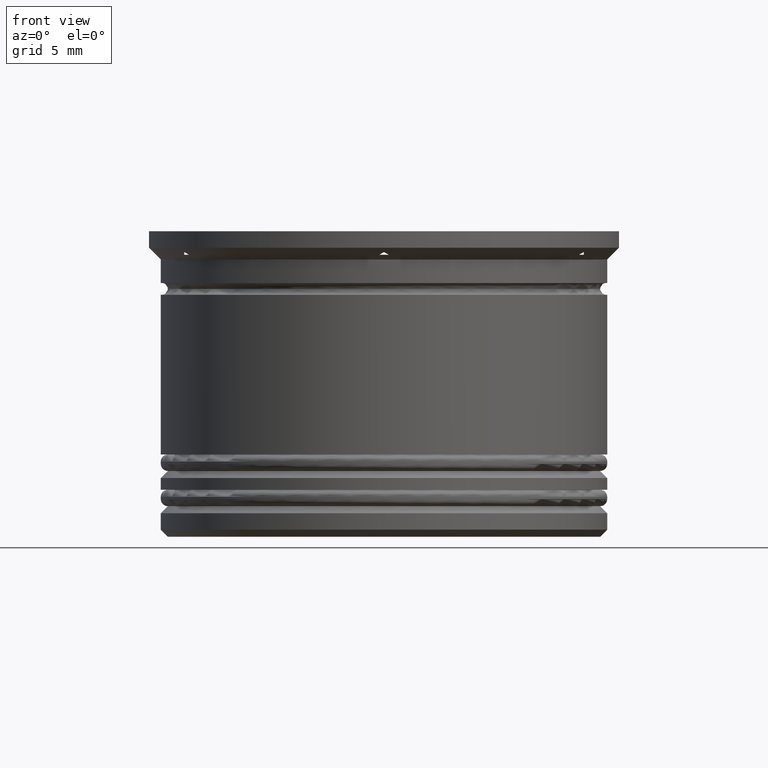
[diagram: clean part render]
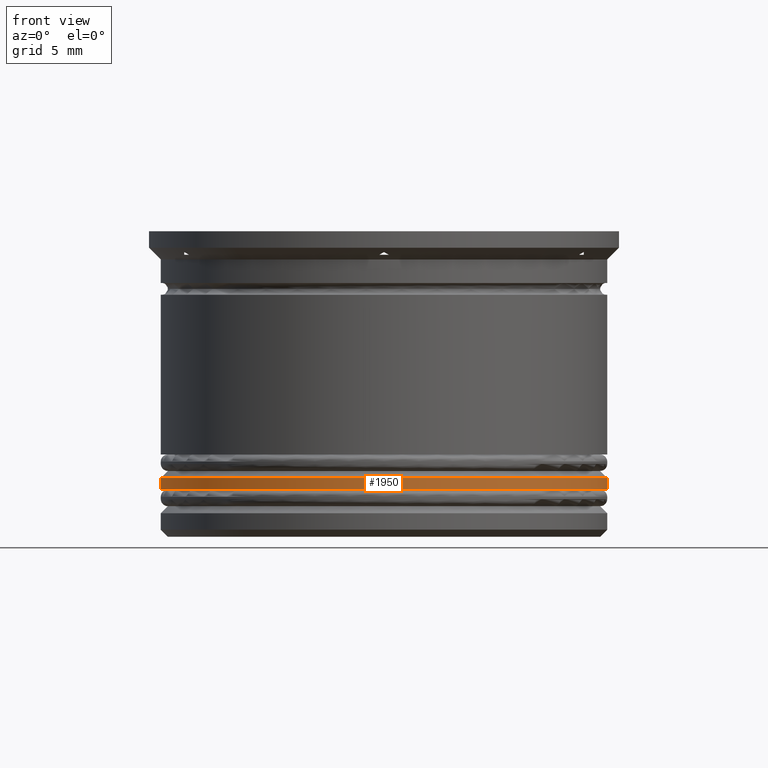
[diagram: same view with one face highlighted and labeled with its STEP entity id]
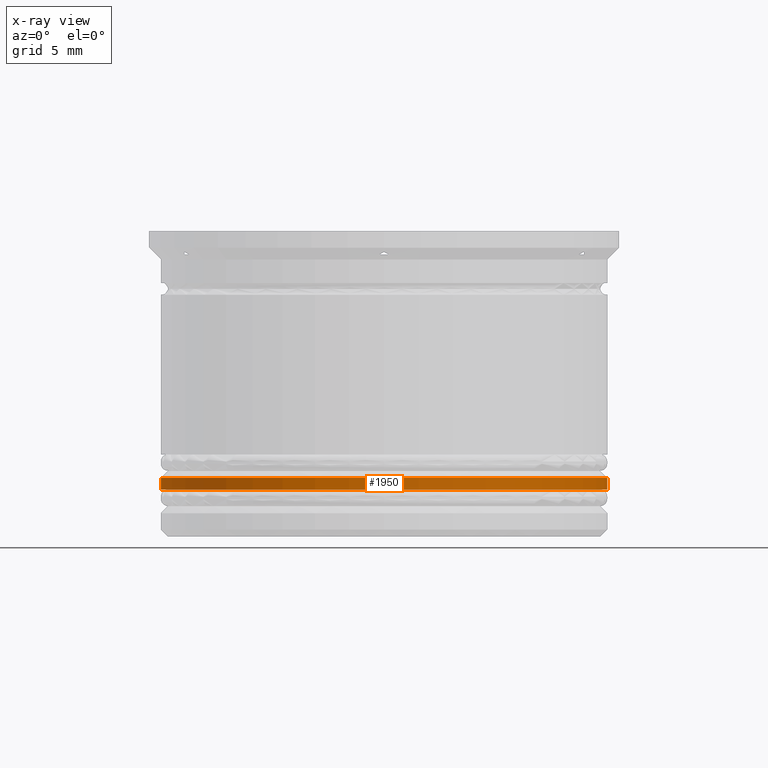
[diagram: x-ray of the same camera — body ghosted, the highlighted face saturated]
A machine part, front view. The second image highlights one B-rep face of the part: STEP entity #1950.
The next image is the same camera in x-ray: the body ghosted, the highlighted face saturated — about 0% of this face is hidden behind the body in this view.
In plain terms, the highlighted cylindrical surface (partial cylindrical patch) has radius 9.5 mm, axis along (-0, -0, 1).
Its self-contained STEP definition (entity closure, byte-faithful):
#104 = DIRECTION ( 'NONE',  ( 0.000000000000000000, 0.000000000000000000, -1.000000000000000000 ) ) ;
#109 = DIRECTION ( 'NONE',  ( -0.000000000000000000, -0.000000000000000000, 1.000000000000000000 ) ) ;
#131 = EDGE_CURVE ( 'NONE', #378, #1216, #1020, .T. ) ;
#203 = CARTESIAN_POINT ( 'NONE',  ( 9.500000000000001776, 0.000000000000000000, -11.00000000000000000 ) ) ;
#343 = ORIENTED_EDGE ( 'NONE', *, *, #131, .T. ) ;
#371 = LINE ( 'NONE', #543, #1928 ) ;
#378 = VERTEX_POINT ( 'NONE', #1200 ) ;
#384 = ORIENTED_EDGE ( 'NONE', *, *, #703, .T. ) ;
#403 = DIRECTION ( 'NONE',  ( -1.000000000000000000, 0.000000000000000000, 0.000000000000000000 ) ) ;
#474 = CIRCLE ( 'NONE', #1478, 9.500000000000001776 ) ;
#479 = CARTESIAN_POINT ( 'NONE',  ( -9.500000000000001776, 1.163414459189985682E-15, -10.50000000000000355 ) ) ;
#543 = CARTESIAN_POINT ( 'NONE',  ( 9.500000000000001776, 0.000000000000000000, 0.000000000000000000 ) ) ;
#643 = DIRECTION ( 'NONE',  ( 1.000000000000000000, 0.000000000000000000, 0.000000000000000000 ) ) ;
#703 = EDGE_CURVE ( 'NONE', #1007, #1835, #474, .T. ) ;
#728 = DIRECTION ( 'NONE',  ( -0.000000000000000000, -0.000000000000000000, 1.000000000000000000 ) ) ;
#741 = CARTESIAN_POINT ( 'NONE',  ( -9.500000000000001776, 1.163414459189985682E-15, -11.00000000000000000 ) ) ;
#795 = ORIENTED_EDGE ( 'NONE', *, *, #1620, .T. ) ;
#890 = DIRECTION ( 'NONE',  ( 1.000000000000000000, 0.000000000000000000, 0.000000000000000000 ) ) ;
#951 = DIRECTION ( 'NONE',  ( -0.000000000000000000, -0.000000000000000000, 1.000000000000000000 ) ) ;
#1007 = VERTEX_POINT ( 'NONE', #741 ) ;
#1020 = CIRCLE ( 'NONE', #1406, 9.500000000000001776 ) ;
#1125 = CARTESIAN_POINT ( 'NONE',  ( -9.500000000000001776, 1.163414459189985682E-15, 0.000000000000000000 ) ) ;
#1200 = CARTESIAN_POINT ( 'NONE',  ( 9.500000000000001776, 0.000000000000000000, -10.50000000000000355 ) ) ;
#1216 = VERTEX_POINT ( 'NONE', #479 ) ;
#1250 = CARTESIAN_POINT ( 'NONE',  ( 0.000000000000000000, 0.000000000000000000, 0.000000000000000000 ) ) ;
#1260 = EDGE_CURVE ( 'NONE', #1007, #1216, #1979, .T. ) ;
#1406 = AXIS2_PLACEMENT_3D ( 'NONE', #1774, #104, #403 ) ;
#1414 = FACE_OUTER_BOUND ( 'NONE', #1772, .T. ) ;
#1455 = CARTESIAN_POINT ( 'NONE',  ( 0.000000000000000000, 0.000000000000000000, -11.00000000000000000 ) ) ;
#1478 = AXIS2_PLACEMENT_3D ( 'NONE', #1455, #109, #643 ) ;
#1516 = VECTOR ( 'NONE', #951, 1000.000000000000000 ) ;
#1620 = EDGE_CURVE ( 'NONE', #1835, #378, #371, .T. ) ;
#1732 = CYLINDRICAL_SURFACE ( 'NONE', #1962, 9.500000000000001776 ) ;
#1772 = EDGE_LOOP ( 'NONE', ( #1941, #384, #795, #343 ) ) ;
#1774 = CARTESIAN_POINT ( 'NONE',  ( 0.000000000000000000, 0.000000000000000000, -10.50000000000000355 ) ) ;
#1835 = VERTEX_POINT ( 'NONE', #203 ) ;
#1928 = VECTOR ( 'NONE', #728, 1000.000000000000000 ) ;
#1941 = ORIENTED_EDGE ( 'NONE', *, *, #1260, .F. ) ;
#1950 = ADVANCED_FACE ( 'NONE', ( #1414 ), #1732, .T. ) ;
#1962 = AXIS2_PLACEMENT_3D ( 'NONE', #1250, #2089, #890 ) ;
#1979 = LINE ( 'NONE', #1125, #1516 ) ;
#2089 = DIRECTION ( 'NONE',  ( -0.000000000000000000, -0.000000000000000000, 1.000000000000000000 ) ) ;